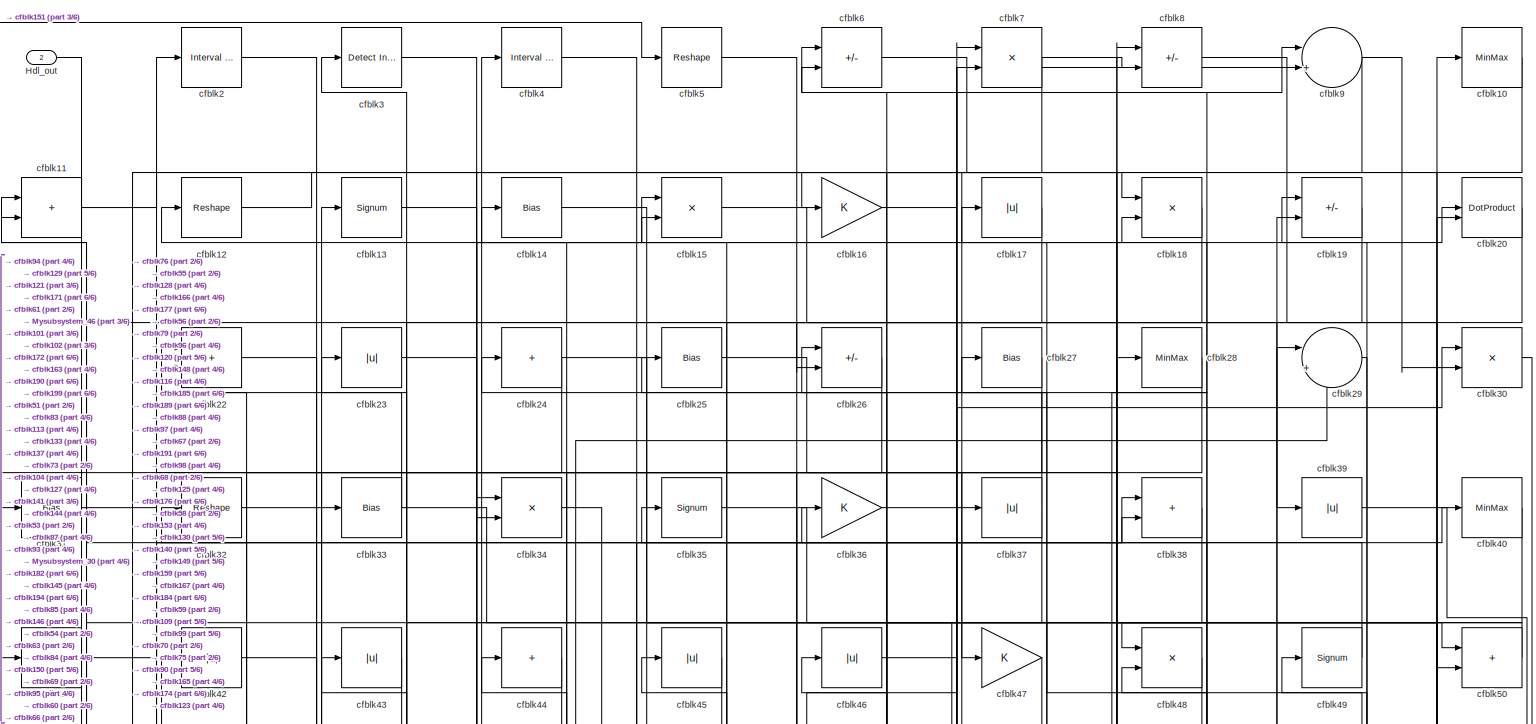
[diagram: root canvas - part 1/6, full width, top band]
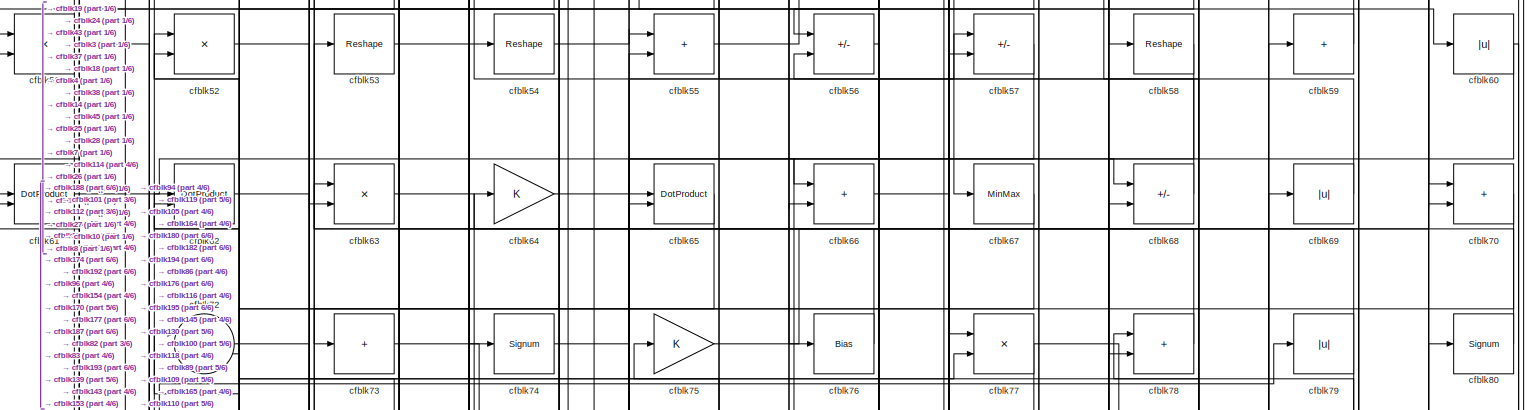
[diagram: root canvas - part 2/6, full width, top band]
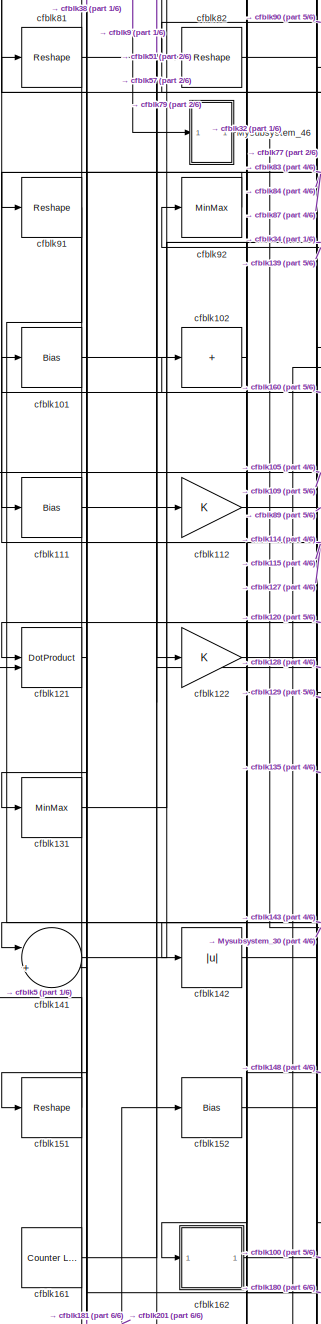
[diagram: root canvas - part 3/6, middle left region]
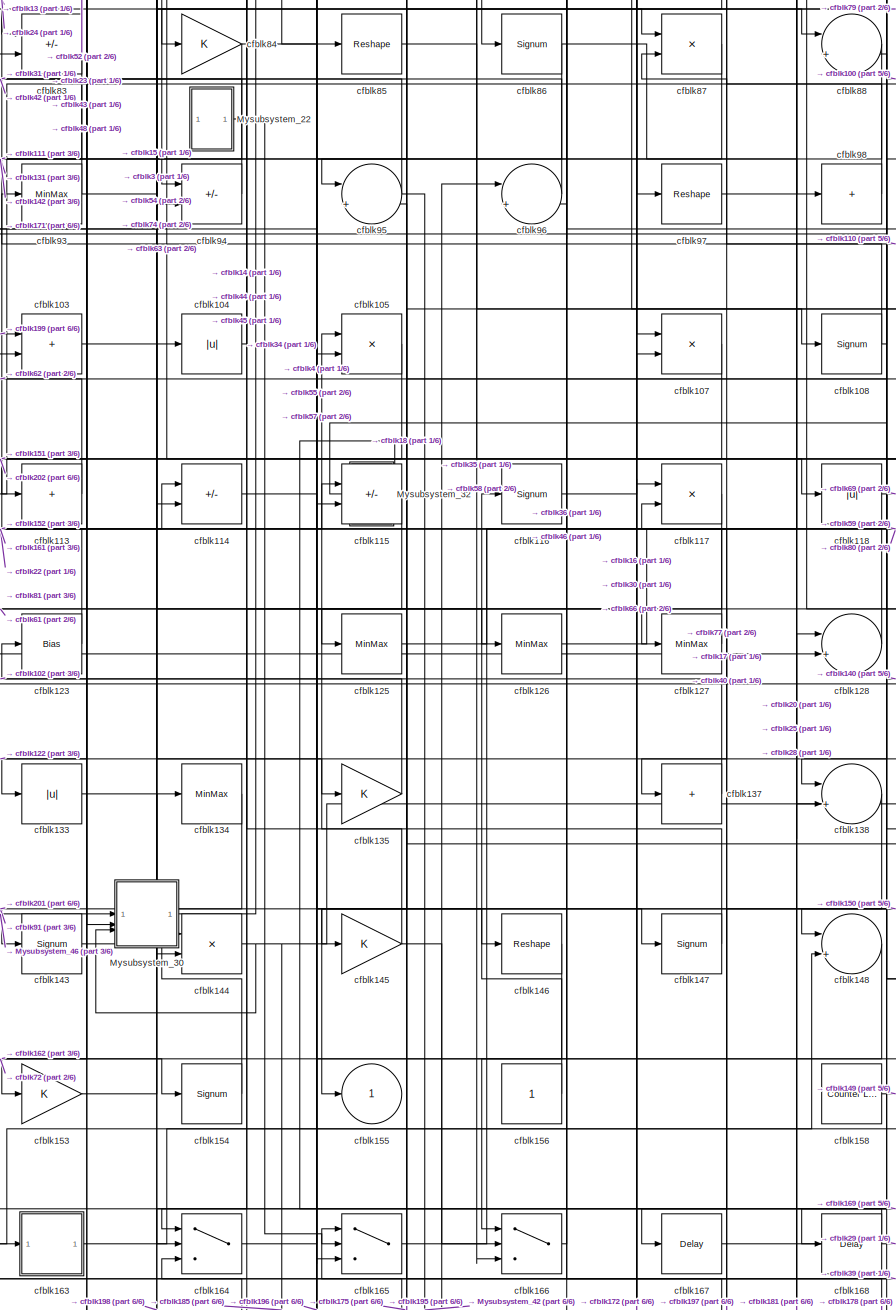
[diagram: root canvas - part 4/6, central region]
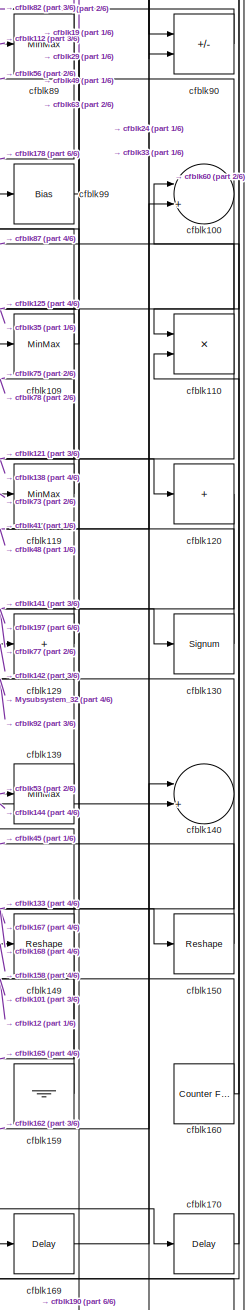
[diagram: root canvas - part 5/6, middle right region]
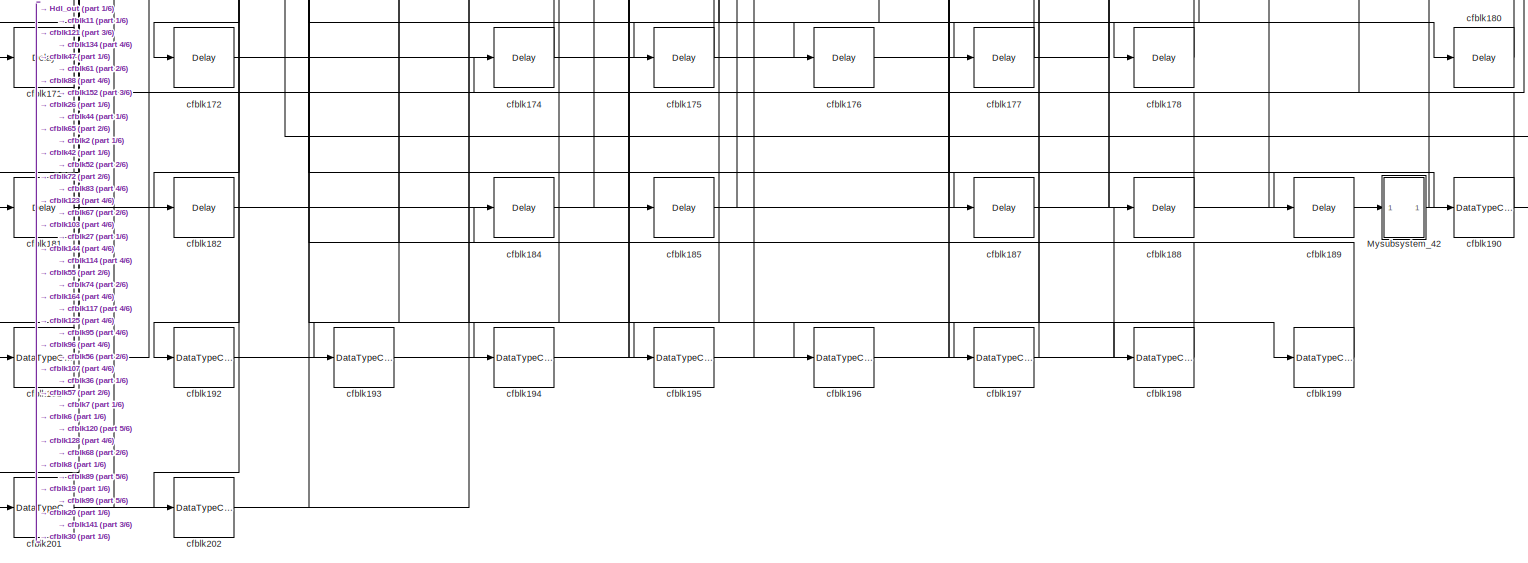
[diagram: root canvas - part 6/6, full width, bottom band]
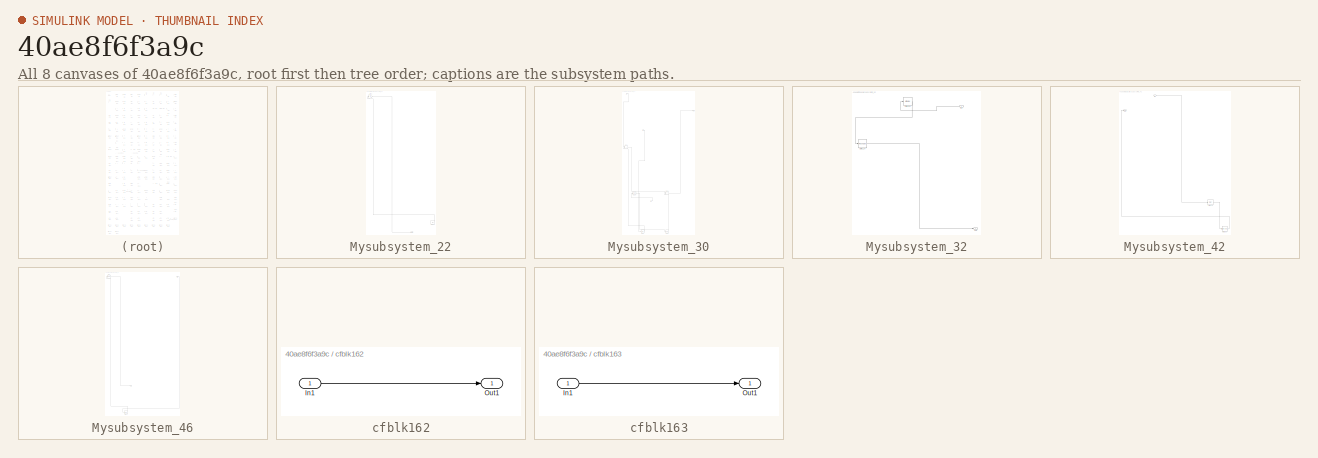
[diagram: thumbnail index - all 8 canvases of the model, root first then tree order]
MODEL slx_40ae8f6f3a9c
KIND model
CONFIG AbsTol = auto
CONFIG EnableMultiTasking = off
CONFIG FixedStep = auto
CONFIG MaxStep = auto
CONFIG MinStep = auto
CONFIG RelTol = 1e-3
CONFIG SampleTimeConstraint = Unconstrained
CONFIG SolverName = VariableStepAuto
CONFIG StartTime = 0.0
CONFIG StopTime = 10.0
BLOCK [Outport] Hdl_out
  OutDataTypeStr = uint8
  Port = 2
BLOCK [SubSystem] Mysubsystem_22
  RTWFcnName = Mysubsystem_22
  RTWFcnNameOpts = User specified
  RTWFileNameOpts = Use function name
  RTWSystemCode = Reusable function
  TreatAsAtomicUnit = on
BLOCK [Outport] Mysubsystem_22/Out1
BLOCK [Ground] Mysubsystem_22/cfblk157
BLOCK [Gain] Mysubsystem_22/cfblk21
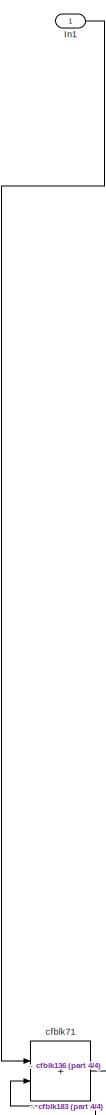
[diagram: Mysubsystem_30 - part 1/4, top left region]
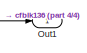
[diagram: Mysubsystem_30 - part 2/4, top right region]
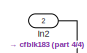
[diagram: Mysubsystem_30 - part 3/4, top left region]
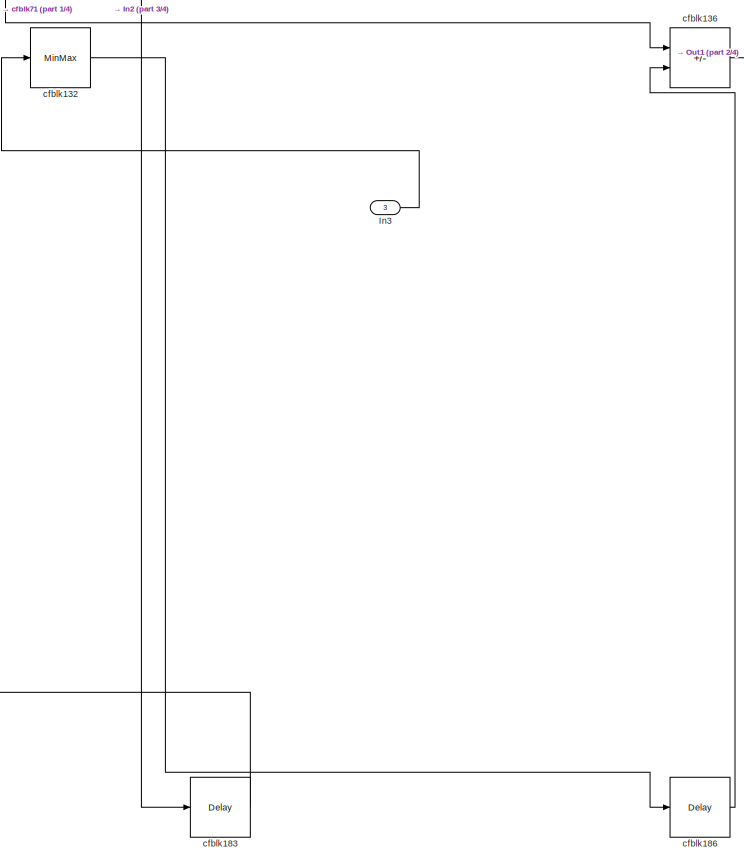
[diagram: Mysubsystem_30 - part 4/4, bottom center region]
BLOCK [SubSystem] Mysubsystem_30
  RTWFcnName = Mysubsystem_30
  RTWFcnNameOpts = User specified
  RTWFileNameOpts = Use function name
  RTWSystemCode = Reusable function
  TreatAsAtomicUnit = on
BLOCK [Inport] Mysubsystem_30/In1
BLOCK [Inport] Mysubsystem_30/In2
  Port = 2
BLOCK [Inport] Mysubsystem_30/In3
  Port = 3
BLOCK [Outport] Mysubsystem_30/Out1
BLOCK [MinMax] Mysubsystem_30/cfblk132
BLOCK [Sum] Mysubsystem_30/cfblk136
  IconShape = rectangular
  Inputs = +-
BLOCK [Delay] Mysubsystem_30/cfblk183
  InputPortMap = u0
  SampleTime = 1
BLOCK [Delay] Mysubsystem_30/cfblk186
  InputPortMap = u0
  SampleTime = 1
BLOCK [Sum] Mysubsystem_30/cfblk71
  IconShape = rectangular
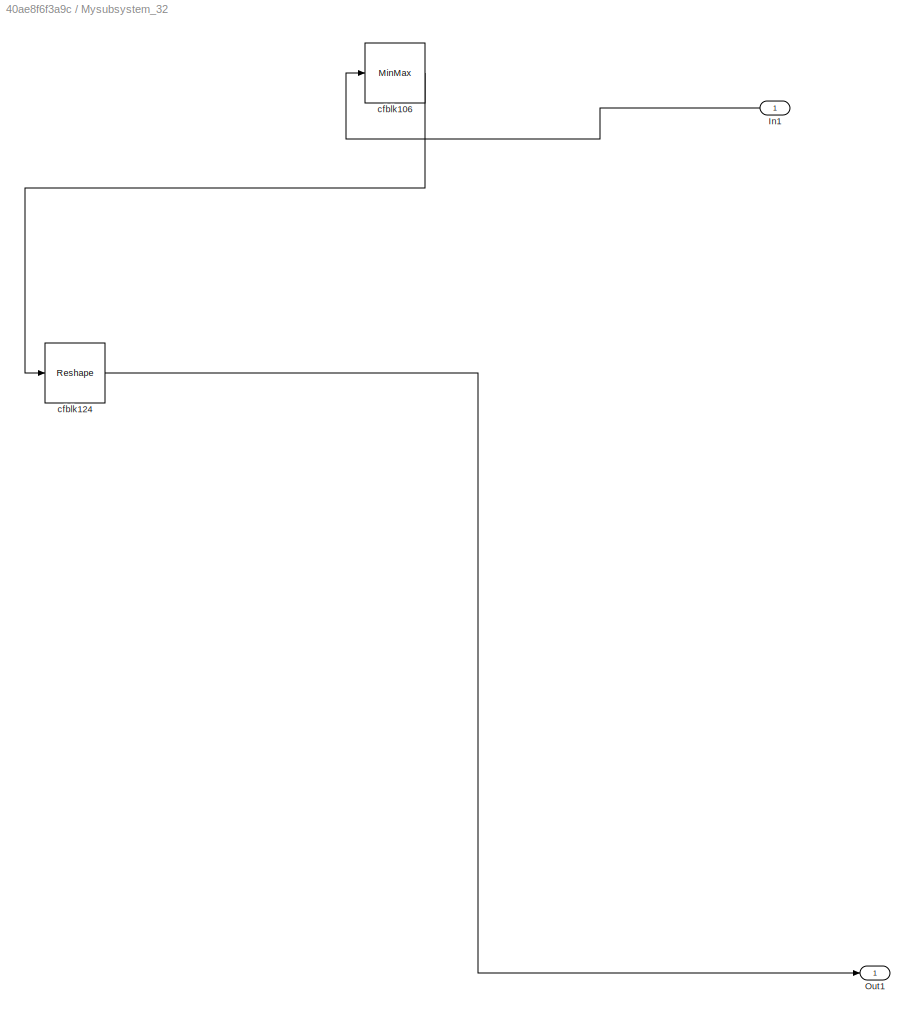
BLOCK [SubSystem] Mysubsystem_32
  RTWFcnName = Mysubsystem_32
  RTWFcnNameOpts = User specified
  RTWFileNameOpts = Use function name
  RTWSystemCode = Reusable function
  TreatAsAtomicUnit = on
BLOCK [Inport] Mysubsystem_32/In1
BLOCK [Outport] Mysubsystem_32/Out1
BLOCK [MinMax] Mysubsystem_32/cfblk106
BLOCK [Reshape] Mysubsystem_32/cfblk124
BLOCK [SubSystem] Mysubsystem_42
  RTWFcnName = Mysubsystem_42
  RTWFcnNameOpts = User specified
  RTWFileNameOpts = Use function name
  RTWSystemCode = Reusable function
  TreatAsAtomicUnit = on
BLOCK [Inport] Mysubsystem_42/In1
BLOCK [Outport] Mysubsystem_42/Out1
BLOCK [Delay] Mysubsystem_42/cfblk179
  InputPortMap = u0
  SampleTime = 1
BLOCK [DataTypeConversion] Mysubsystem_42/cfblk200
  OutDataTypeStr = uint8
  RndMeth = Floor
  SaturateOnIntegerOverflow = off
BLOCK [SubSystem] Mysubsystem_46
  RTWFcnName = Mysubsystem_46
  RTWFcnNameOpts = User specified
  RTWFileNameOpts = Use function name
  RTWSystemCode = Reusable function
  TreatAsAtomicUnit = on
BLOCK [Inport] Mysubsystem_46/In1
BLOCK [Outport] Mysubsystem_46/Y
BLOCK [Reference] Mysubsystem_46/cfblk1  REF=hdlsllib/Logic and Bit
Operations/Detect Fall
Nonpositive
  SourceBlock = hdlsllib/Logic and Bit\nOperations/Detect Fall\nNonpositive
  SourceType = Detect Fall Nonpositive
BLOCK [Delay] Mysubsystem_46/cfblk173
  InputPortMap = u0
  SampleTime = 1
BLOCK [MinMax] cfblk10
  OutDataTypeStr = uint8
BLOCK [Sum] cfblk100
  Inputs = |++
  OutDataTypeStr = uint8
BLOCK [Bias] cfblk101
  Bias = 0.0
  SaturateOnIntegerOverflow = off
BLOCK [Sum] cfblk102
  IconShape = rectangular
  Inputs = +
  OutDataTypeStr = uint8
BLOCK [Sum] cfblk103
  IconShape = rectangular
  OutDataTypeStr = uint8
BLOCK [Abs] cfblk104
  OutDataTypeStr = uint8
  SaturateOnIntegerOverflow = off
BLOCK [Product] cfblk105
  Inputs = */
  OutDataTypeStr = uint8
  RndMeth = Zero
  SaturateOnIntegerOverflow = on
BLOCK [Product] cfblk107
  Inputs = */
  OutDataTypeStr = uint8
  RndMeth = Zero
  SaturateOnIntegerOverflow = on
BLOCK [Signum] cfblk108
BLOCK [MinMax] cfblk109
  OutDataTypeStr = uint8
BLOCK [Sum] cfblk11
  IconShape = rectangular
  OutDataTypeStr = uint8
BLOCK [Product] cfblk110
  Inputs = */
  OutDataTypeStr = uint8
  RndMeth = Zero
  SaturateOnIntegerOverflow = on
BLOCK [Bias] cfblk111
  Bias = 0.0
  SaturateOnIntegerOverflow = off
BLOCK [Gain] cfblk112
  OutDataTypeStr = uint8
BLOCK [Sum] cfblk113
  IconShape = rectangular
  Inputs = +
  OutDataTypeStr = uint8
BLOCK [Sum] cfblk114
  IconShape = rectangular
  Inputs = +-
  OutDataTypeStr = uint8
BLOCK [Sum] cfblk115
  IconShape = rectangular
  Inputs = +-
  OutDataTypeStr = uint8
BLOCK [Signum] cfblk116
BLOCK [Product] cfblk117
  Inputs = */
  OutDataTypeStr = uint8
  RndMeth = Zero
  SaturateOnIntegerOverflow = on
BLOCK [Abs] cfblk118
  OutDataTypeStr = uint8
  SaturateOnIntegerOverflow = off
BLOCK [MinMax] cfblk119
  OutDataTypeStr = uint8
BLOCK [Reshape] cfblk12
BLOCK [Sum] cfblk120
  IconShape = rectangular
  Inputs = +
  OutDataTypeStr = uint8
BLOCK [DotProduct] cfblk121
  OutDataTypeStr = uint8
BLOCK [Gain] cfblk122
  OutDataTypeStr = uint8
BLOCK [Bias] cfblk123
  Bias = 0.0
  SaturateOnIntegerOverflow = off
BLOCK [MinMax] cfblk125
  OutDataTypeStr = uint8
BLOCK [MinMax] cfblk126
  OutDataTypeStr = uint8
BLOCK [MinMax] cfblk127
  OutDataTypeStr = uint8
BLOCK [Sum] cfblk128
  Inputs = |++
  OutDataTypeStr = uint8
BLOCK [Sum] cfblk129
  IconShape = rectangular
  Inputs = +
  OutDataTypeStr = uint8
BLOCK [Signum] cfblk13
BLOCK [Signum] cfblk130
BLOCK [MinMax] cfblk131
  OutDataTypeStr = uint8
BLOCK [Abs] cfblk133
  OutDataTypeStr = uint8
  SaturateOnIntegerOverflow = off
BLOCK [MinMax] cfblk134
  OutDataTypeStr = uint8
BLOCK [Gain] cfblk135
  OutDataTypeStr = uint8
BLOCK [Sum] cfblk137
  IconShape = rectangular
  Inputs = +
  OutDataTypeStr = uint8
BLOCK [Sum] cfblk138
  Inputs = |++
  OutDataTypeStr = uint8
BLOCK [MinMax] cfblk139
  OutDataTypeStr = uint8
BLOCK [Bias] cfblk14
  Bias = 0.0
  SaturateOnIntegerOverflow = off
BLOCK [Sum] cfblk140
  Inputs = |++
  OutDataTypeStr = uint8
BLOCK [Sum] cfblk141
  Inputs = |++
  OutDataTypeStr = uint8
BLOCK [Abs] cfblk142
  OutDataTypeStr = uint8
  SaturateOnIntegerOverflow = off
BLOCK [Signum] cfblk143
BLOCK [Product] cfblk144
  Inputs = */
  OutDataTypeStr = uint8
  RndMeth = Zero
  SaturateOnIntegerOverflow = on
BLOCK [Gain] cfblk145
  OutDataTypeStr = uint8
BLOCK [Reshape] cfblk146
BLOCK [Signum] cfblk147
BLOCK [Sum] cfblk148
  Inputs = |++
  OutDataTypeStr = uint8
BLOCK [Reshape] cfblk149
BLOCK [Product] cfblk15
  Inputs = */
  OutDataTypeStr = uint8
  RndMeth = Zero
  SaturateOnIntegerOverflow = on
BLOCK [Reshape] cfblk150
BLOCK [Reshape] cfblk151
BLOCK [Bias] cfblk152
  Bias = 0.0
  SaturateOnIntegerOverflow = off
BLOCK [Gain] cfblk153
  OutDataTypeStr = uint8
BLOCK [Signum] cfblk154
BLOCK [Outport] cfblk155
  OutDataTypeStr = uint8
  VectorParamsAs1DForOutWhenUnconnected = off
BLOCK [Constant] cfblk156
  OutDataTypeStr = uint8
  SampleTime = -1
BLOCK [Reference] cfblk158  REF=hdlsllib/Sources/Counter
Limited
  SourceBlock = hdlsllib/Sources/Counter\nLimited
  SourceType = Counter Limited
BLOCK [Ground] cfblk159
BLOCK [Gain] cfblk16
  OutDataTypeStr = uint8
BLOCK [Reference] cfblk160  REF=hdlsllib/Sources/Counter
Free-Running
  SourceBlock = hdlsllib/Sources/Counter\nFree-Running
  SourceType = Counter Free-Running
BLOCK [Reference] cfblk161  REF=hdlsllib/Sources/Counter
Limited
  SourceBlock = hdlsllib/Sources/Counter\nLimited
  SourceType = Counter Limited
BLOCK [SubSystem] cfblk162
  LibrarySourceBlock = hdlsllib/Ports &\nSubsystems/Subsystem
BLOCK [Inport] cfblk162/In1
BLOCK [Outport] cfblk162/Out1
BLOCK [SubSystem] cfblk163
  LibrarySourceBlock = hdlsllib/Ports &\nSubsystems/Subsystem
BLOCK [Inport] cfblk163/In1
BLOCK [Outport] cfblk163/Out1
BLOCK [Switch] cfblk164
  InputSameDT = off
  OutDataTypeStr = uint8
  SaturateOnIntegerOverflow = off
BLOCK [Switch] cfblk165
  InputSameDT = off
  OutDataTypeStr = uint8
  SaturateOnIntegerOverflow = off
BLOCK [Switch] cfblk166
  InputSameDT = off
  OutDataTypeStr = uint8
  SaturateOnIntegerOverflow = off
BLOCK [Delay] cfblk167
  InputPortMap = u0
  SampleTime = 1
BLOCK [Delay] cfblk168
  InputPortMap = u0
  SampleTime = 1
BLOCK [Delay] cfblk169
  InputPortMap = u0
  SampleTime = 1
BLOCK [Abs] cfblk17
  OutDataTypeStr = uint8
  SaturateOnIntegerOverflow = off
BLOCK [Delay] cfblk170
  InputPortMap = u0
  SampleTime = 1
BLOCK [Delay] cfblk171
  InputPortMap = u0
  SampleTime = 1
BLOCK [Delay] cfblk172
  InputPortMap = u0
  SampleTime = 1
BLOCK [Delay] cfblk174
  InputPortMap = u0
  SampleTime = 1
BLOCK [Delay] cfblk175
  InputPortMap = u0
  SampleTime = 1
BLOCK [Delay] cfblk176
  InputPortMap = u0
  SampleTime = 1
BLOCK [Delay] cfblk177
  InputPortMap = u0
  SampleTime = 1
BLOCK [Delay] cfblk178
  InputPortMap = u0
  SampleTime = 1
BLOCK [Product] cfblk18
  Inputs = */
  OutDataTypeStr = uint8
  RndMeth = Zero
  SaturateOnIntegerOverflow = on
BLOCK [Delay] cfblk180
  InputPortMap = u0
  SampleTime = 1
BLOCK [Delay] cfblk181
  InputPortMap = u0
  SampleTime = 1
BLOCK [Delay] cfblk182
  InputPortMap = u0
  SampleTime = 1
BLOCK [Delay] cfblk184
  InputPortMap = u0
  SampleTime = 1
BLOCK [Delay] cfblk185
  InputPortMap = u0
  SampleTime = 1
BLOCK [Delay] cfblk187
  InputPortMap = u0
  SampleTime = 1
BLOCK [Delay] cfblk188
  InputPortMap = u0
  SampleTime = 1
BLOCK [Delay] cfblk189
  InputPortMap = u0
  SampleTime = 1
BLOCK [Sum] cfblk19
  IconShape = rectangular
  Inputs = +-
  OutDataTypeStr = uint8
BLOCK [DataTypeConversion] cfblk190
  OutDataTypeStr = uint8
  RndMeth = Floor
  SaturateOnIntegerOverflow = off
BLOCK [DataTypeConversion] cfblk191
  OutDataTypeStr = uint8
  RndMeth = Floor
  SaturateOnIntegerOverflow = off
BLOCK [DataTypeConversion] cfblk192
  OutDataTypeStr = uint8
  RndMeth = Floor
  SaturateOnIntegerOverflow = off
BLOCK [DataTypeConversion] cfblk193
  OutDataTypeStr = uint8
  RndMeth = Floor
  SaturateOnIntegerOverflow = off
BLOCK [DataTypeConversion] cfblk194
  OutDataTypeStr = uint8
  RndMeth = Floor
  SaturateOnIntegerOverflow = off
BLOCK [DataTypeConversion] cfblk195
  OutDataTypeStr = uint8
  RndMeth = Floor
  SaturateOnIntegerOverflow = off
BLOCK [DataTypeConversion] cfblk196
  OutDataTypeStr = uint8
  RndMeth = Floor
  SaturateOnIntegerOverflow = off
BLOCK [DataTypeConversion] cfblk197
  OutDataTypeStr = uint8
  RndMeth = Floor
  SaturateOnIntegerOverflow = off
BLOCK [DataTypeConversion] cfblk198
  OutDataTypeStr = uint8
  RndMeth = Floor
  SaturateOnIntegerOverflow = off
BLOCK [DataTypeConversion] cfblk199
  OutDataTypeStr = uint8
  RndMeth = Floor
  SaturateOnIntegerOverflow = off
BLOCK [Reference] cfblk2  REF=hdlsllib/Logic and Bit
Operations/Interval Test
  SourceBlock = hdlsllib/Logic and Bit\nOperations/Interval Test
  SourceType = Interval Test
BLOCK [DotProduct] cfblk20
  OutDataTypeStr = uint8
BLOCK [DataTypeConversion] cfblk201
  OutDataTypeStr = uint8
  RndMeth = Floor
  SaturateOnIntegerOverflow = off
BLOCK [DataTypeConversion] cfblk202
  OutDataTypeStr = uint8
  RndMeth = Floor
  SaturateOnIntegerOverflow = off
BLOCK [Sum] cfblk22
  IconShape = rectangular
  OutDataTypeStr = uint8
BLOCK [Abs] cfblk23
  OutDataTypeStr = uint8
  SaturateOnIntegerOverflow = off
BLOCK [Sum] cfblk24
  IconShape = rectangular
  Inputs = +
  OutDataTypeStr = uint8
BLOCK [Bias] cfblk25
  Bias = 0.0
  SaturateOnIntegerOverflow = off
BLOCK [Sum] cfblk26
  IconShape = rectangular
  Inputs = +-
  OutDataTypeStr = uint8
BLOCK [Bias] cfblk27
  Bias = 0.0
  SaturateOnIntegerOverflow = off
BLOCK [MinMax] cfblk28
  OutDataTypeStr = uint8
BLOCK [Sum] cfblk29
  Inputs = |++
  OutDataTypeStr = uint8
BLOCK [Reference] cfblk3  REF=simulink/Logic and Bit
Operations/Detect
Increase
  LibrarySourceBlock = hdlsllib/Logic and Bit\nOperations/Detect\nIncrease
  SourceBlock = simulink/Logic and Bit\nOperations/Detect\nIncrease
  SourceType = Detect Increase
BLOCK [Product] cfblk30
  Inputs = */
  OutDataTypeStr = uint8
  RndMeth = Zero
  SaturateOnIntegerOverflow = on
BLOCK [Bias] cfblk31
  Bias = 0.0
  SaturateOnIntegerOverflow = off
BLOCK [Reshape] cfblk32
BLOCK [Bias] cfblk33
  Bias = 0.0
  SaturateOnIntegerOverflow = off
BLOCK [Product] cfblk34
  Inputs = */
  OutDataTypeStr = uint8
  RndMeth = Zero
  SaturateOnIntegerOverflow = on
BLOCK [Signum] cfblk35
BLOCK [Gain] cfblk36
  OutDataTypeStr = uint8
BLOCK [Abs] cfblk37
  OutDataTypeStr = uint8
  SaturateOnIntegerOverflow = off
BLOCK [Sum] cfblk38
  IconShape = rectangular
  OutDataTypeStr = uint8
BLOCK [Abs] cfblk39
  OutDataTypeStr = uint8
  SaturateOnIntegerOverflow = off
BLOCK [Reference] cfblk4  REF=hdlsllib/Logic and Bit
Operations/Interval Test
  SourceBlock = hdlsllib/Logic and Bit\nOperations/Interval Test
  SourceType = Interval Test
BLOCK [MinMax] cfblk40
  OutDataTypeStr = uint8
BLOCK [Bias] cfblk41
  Bias = 0.0
  SaturateOnIntegerOverflow = off
BLOCK [Abs] cfblk42
  OutDataTypeStr = uint8
  SaturateOnIntegerOverflow = off
BLOCK [Abs] cfblk43
  OutDataTypeStr = uint8
  SaturateOnIntegerOverflow = off
BLOCK [Sum] cfblk44
  IconShape = rectangular
  Inputs = +
  OutDataTypeStr = uint8
BLOCK [Abs] cfblk45
  OutDataTypeStr = uint8
  SaturateOnIntegerOverflow = off
BLOCK [Abs] cfblk46
  OutDataTypeStr = uint8
  SaturateOnIntegerOverflow = off
BLOCK [Gain] cfblk47
  OutDataTypeStr = uint8
BLOCK [Product] cfblk48
  Inputs = */
  OutDataTypeStr = uint8
  RndMeth = Zero
  SaturateOnIntegerOverflow = on
BLOCK [Signum] cfblk49
BLOCK [Reshape] cfblk5
BLOCK [Sum] cfblk50
  IconShape = rectangular
  OutDataTypeStr = uint8
BLOCK [Product] cfblk51
  Inputs = */
  OutDataTypeStr = uint8
  RndMeth = Zero
  SaturateOnIntegerOverflow = on
BLOCK [Product] cfblk52
  Inputs = */
  OutDataTypeStr = uint8
  RndMeth = Zero
  SaturateOnIntegerOverflow = on
BLOCK [Reshape] cfblk53
BLOCK [Reshape] cfblk54
BLOCK [Sum] cfblk55
  IconShape = rectangular
  OutDataTypeStr = uint8
BLOCK [Sum] cfblk56
  IconShape = rectangular
  Inputs = +-
  OutDataTypeStr = uint8
BLOCK [Sum] cfblk57
  IconShape = rectangular
  Inputs = +-
  OutDataTypeStr = uint8
BLOCK [Reshape] cfblk58
BLOCK [Sum] cfblk59
  IconShape = rectangular
  Inputs = +
  OutDataTypeStr = uint8
BLOCK [Sum] cfblk6
  IconShape = rectangular
  Inputs = +-
  OutDataTypeStr = uint8
BLOCK [Abs] cfblk60
  OutDataTypeStr = uint8
  SaturateOnIntegerOverflow = off
BLOCK [DotProduct] cfblk61
  OutDataTypeStr = uint8
BLOCK [DotProduct] cfblk62
  OutDataTypeStr = uint8
BLOCK [Product] cfblk63
  Inputs = */
  OutDataTypeStr = uint8
  RndMeth = Zero
  SaturateOnIntegerOverflow = on
BLOCK [Gain] cfblk64
  OutDataTypeStr = uint8
BLOCK [DotProduct] cfblk65
  OutDataTypeStr = uint8
BLOCK [Sum] cfblk66
  IconShape = rectangular
  OutDataTypeStr = uint8
BLOCK [MinMax] cfblk67
  OutDataTypeStr = uint8
BLOCK [Sum] cfblk68
  IconShape = rectangular
  Inputs = +-
  OutDataTypeStr = uint8
BLOCK [Abs] cfblk69
  OutDataTypeStr = uint8
  SaturateOnIntegerOverflow = off
BLOCK [Product] cfblk7
  Inputs = */
  OutDataTypeStr = uint8
  RndMeth = Zero
  SaturateOnIntegerOverflow = on
BLOCK [Sum] cfblk70
  IconShape = rectangular
  OutDataTypeStr = uint8
BLOCK [Sum] cfblk72
  Inputs = |++
  OutDataTypeStr = uint8
BLOCK [Sum] cfblk73
  IconShape = rectangular
  Inputs = +
  OutDataTypeStr = uint8
BLOCK [Signum] cfblk74
BLOCK [Gain] cfblk75
  OutDataTypeStr = uint8
BLOCK [Bias] cfblk76
  Bias = 0.0
  SaturateOnIntegerOverflow = off
BLOCK [Product] cfblk77
  Inputs = */
  OutDataTypeStr = uint8
  RndMeth = Zero
  SaturateOnIntegerOverflow = on
BLOCK [Sum] cfblk78
  IconShape = rectangular
  OutDataTypeStr = uint8
BLOCK [Abs] cfblk79
  OutDataTypeStr = uint8
  SaturateOnIntegerOverflow = off
BLOCK [Sum] cfblk8
  IconShape = rectangular
  Inputs = +-
  OutDataTypeStr = uint8
BLOCK [Signum] cfblk80
BLOCK [Reshape] cfblk81
BLOCK [Reshape] cfblk82
BLOCK [Sum] cfblk83
  IconShape = rectangular
  Inputs = +-
  OutDataTypeStr = uint8
BLOCK [Gain] cfblk84
  OutDataTypeStr = uint8
BLOCK [Reshape] cfblk85
BLOCK [Signum] cfblk86
BLOCK [Product] cfblk87
  Inputs = */
  OutDataTypeStr = uint8
  RndMeth = Zero
  SaturateOnIntegerOverflow = on
BLOCK [Sum] cfblk88
  Inputs = |++
  OutDataTypeStr = uint8
BLOCK [MinMax] cfblk89
  OutDataTypeStr = uint8
BLOCK [Sum] cfblk9
  Inputs = |++
  OutDataTypeStr = uint8
BLOCK [Sum] cfblk90
  IconShape = rectangular
  Inputs = +-
  OutDataTypeStr = uint8
BLOCK [Reshape] cfblk91
BLOCK [MinMax] cfblk92
  OutDataTypeStr = uint8
BLOCK [MinMax] cfblk93
  OutDataTypeStr = uint8
BLOCK [Sum] cfblk94
  IconShape = rectangular
  Inputs = +-
  OutDataTypeStr = uint8
BLOCK [Sum] cfblk95
  Inputs = |++
  OutDataTypeStr = uint8
BLOCK [Sum] cfblk96
  Inputs = |++
  OutDataTypeStr = uint8
BLOCK [Reshape] cfblk97
BLOCK [Sum] cfblk98
  IconShape = rectangular
  Inputs = +
  OutDataTypeStr = uint8
BLOCK [Bias] cfblk99
  Bias = 0.0
  SaturateOnIntegerOverflow = off
LINE Mysubsystem_22/cfblk157:1 -> Mysubsystem_22/cfblk21:1
LINE Mysubsystem_22/cfblk21:1 -> Mysubsystem_22/Out1:1
LINE Mysubsystem_22:1 -> cfblk165:2
LINE Mysubsystem_30/In1:1 -> Mysubsystem_30/cfblk71:1
LINE Mysubsystem_30/In2:1 -> Mysubsystem_30/cfblk183:1
LINE Mysubsystem_30/In3:1 -> Mysubsystem_30/cfblk132:1
LINE Mysubsystem_30/cfblk132:1 -> Mysubsystem_30/cfblk186:1
LINE Mysubsystem_30/cfblk136:1 -> Mysubsystem_30/Out1:1
LINE Mysubsystem_30/cfblk183:1 -> Mysubsystem_30/cfblk71:2
LINE Mysubsystem_30/cfblk186:1 -> Mysubsystem_30/cfblk136:2
LINE Mysubsystem_30/cfblk71:1 -> Mysubsystem_30/cfblk136:1
LINE Mysubsystem_30:1 -> cfblk29:2
LINE Mysubsystem_32/In1:1 -> Mysubsystem_32/cfblk106:1
LINE Mysubsystem_32/cfblk106:1 -> Mysubsystem_32/cfblk124:1
LINE Mysubsystem_32/cfblk124:1 -> Mysubsystem_32/Out1:1
LINE Mysubsystem_32:1 -> cfblk169:1
LINE Mysubsystem_42/In1:1 -> Mysubsystem_42/cfblk179:1
LINE Mysubsystem_42/cfblk179:1 -> Mysubsystem_42/cfblk200:1
LINE Mysubsystem_42/cfblk200:1 -> Mysubsystem_42/Out1:1
LINE Mysubsystem_42:1 -> cfblk103:2
LINE Mysubsystem_46/In1:1 -> Mysubsystem_46/cfblk173:1
LINE Mysubsystem_46/cfblk173:1 -> Mysubsystem_46/cfblk1:1
LINE Mysubsystem_46/cfblk1:1 -> Mysubsystem_46/Y:1
LINE Mysubsystem_46:1 -> Mysubsystem_30:1
NET cfblk100:1 -> cfblk125:1, cfblk56:2
NET cfblk101:1 -> cfblk38:2, cfblk57:1
LINE cfblk102:1 -> cfblk32:1
LINE cfblk103:1 -> cfblk198:1
LINE cfblk104:1 -> cfblk14:1
LINE cfblk105:1 -> cfblk151:1
LINE cfblk107:1 -> cfblk202:1
NET cfblk108:1 -> cfblk88:2, cfblk93:1
NET cfblk109:1 -> cfblk121:2, cfblk49:1, cfblk63:1
LINE cfblk10:1 -> cfblk56:1
NET cfblk110:1 -> cfblk138:1, cfblk87:2
LINE cfblk111:1 -> cfblk128:2
LINE cfblk112:1 -> cfblk89:1
LINE cfblk113:1 -> cfblk62:1
LINE cfblk114:1 -> cfblk196:1
LINE cfblk115:1 -> cfblk164:1
NET cfblk116:1 -> cfblk30:1, cfblk77:1
LINE cfblk117:1 -> cfblk195:1
LINE cfblk118:1 -> cfblk69:1
NET cfblk119:1 -> cfblk75:1, cfblk78:1
LINE cfblk11:1 -> cfblk16:1
NET cfblk120:1 -> cfblk141:1, cfblk197:1
LINE cfblk121:1 -> cfblk181:1
LINE cfblk122:1 -> cfblk135:1
LINE cfblk123:1 -> cfblk13:1
NET cfblk125:1 -> cfblk175:1, cfblk28:1
LINE cfblk126:1 -> cfblk59:1
LINE cfblk127:1 -> cfblk81:1
NET cfblk128:1 -> cfblk22:1, cfblk36:1
LINE cfblk129:1 -> cfblk41:1
LINE cfblk12:1 -> cfblk67:1
LINE cfblk130:1 -> cfblk48:2
LINE cfblk131:1 -> cfblk79:1
LINE cfblk133:1 -> cfblk150:1
LINE cfblk134:1 -> cfblk201:1
LINE cfblk135:1 -> cfblk102:1
LINE cfblk137:1 -> cfblk23:1
LINE cfblk138:1 -> cfblk155:1
LINE cfblk139:1 -> cfblk92:1
NET cfblk13:1 -> cfblk104:1, cfblk127:1
NET cfblk140:1 -> Mysubsystem_32:1, cfblk167:1, cfblk168:1, cfblk35:1
LINE cfblk141:1 -> cfblk34:1
LINE cfblk142:1 -> cfblk129:1
LINE cfblk143:1 -> cfblk54:1
NET cfblk144:1 -> Mysubsystem_30:3, cfblk140:2, cfblk185:1
NET cfblk145:1 -> cfblk166:2, cfblk44:1
LINE cfblk146:1 -> cfblk166:1
LINE cfblk147:1 -> cfblk105:1
LINE cfblk148:1 -> cfblk162:1
NET cfblk149:1 -> cfblk165:3, cfblk24:1
NET cfblk14:1 -> cfblk60:1, cfblk76:1
LINE cfblk150:1 -> cfblk45:1
LINE cfblk151:1 -> cfblk5:1
LINE cfblk152:1 -> cfblk115:1
LINE cfblk153:1 -> cfblk74:1
LINE cfblk154:1 -> cfblk144:1
LINE cfblk156:1 -> cfblk116:1
LINE cfblk158:1 -> cfblk149:1
LINE cfblk159:1 -> cfblk12:1
LINE cfblk15:1 -> cfblk39:1
NET cfblk160:1 -> cfblk101:1, cfblk110:2
LINE cfblk161:1 -> cfblk114:1
LINE cfblk162/In1:1 -> cfblk162/Out1:1
LINE cfblk162:1 -> cfblk100:2
LINE cfblk163/In1:1 -> cfblk163/Out1:1
LINE cfblk163:1 -> cfblk148:2
LINE cfblk164:1 -> cfblk55:1
LINE cfblk165:1 -> cfblk80:1
LINE cfblk166:1 -> cfblk46:1
LINE cfblk167:1 -> cfblk29:1
LINE cfblk168:1 -> cfblk164:2
LINE cfblk169:1 -> cfblk140:1
NET cfblk16:1 -> cfblk97:1, cfblk9:1
LINE cfblk170:1 -> cfblk100:1
LINE cfblk171:1 -> cfblk11:2
LINE cfblk172:1 -> cfblk107:2
LINE cfblk174:1 -> cfblk72:1
LINE cfblk175:1 -> cfblk164:3
LINE cfblk176:1 -> cfblk8:1
LINE cfblk177:1 -> cfblk6:2
LINE cfblk178:1 -> cfblk95:2
LINE cfblk17:1 -> cfblk26:2
LINE cfblk180:1 -> cfblk141:2
LINE cfblk181:1 -> cfblk128:1
LINE cfblk182:1 -> cfblk55:2
LINE cfblk184:1 -> cfblk19:2
LINE cfblk185:1 -> cfblk7:2
LINE cfblk187:1 -> cfblk68:2
LINE cfblk188:1 -> cfblk61:2
LINE cfblk189:1 -> cfblk20:2
LINE cfblk18:1 -> cfblk95:1
LINE cfblk190:1 -> cfblk99:1
NET cfblk191:1 -> Hdl_out:1, cfblk2:1
LINE cfblk192:1 -> cfblk188:1
LINE cfblk193:1 -> cfblk65:1
LINE cfblk194:1 -> cfblk65:2
NET cfblk195:1 -> cfblk57:2, cfblk96:1
LINE cfblk196:1 -> cfblk117:1
LINE cfblk197:1 -> cfblk117:2
NET cfblk198:1 -> cfblk123:1, cfblk184:1
LINE cfblk199:1 -> cfblk103:1
LINE cfblk19:1 -> cfblk61:1
NET cfblk201:1 -> cfblk152:1, cfblk83:2
LINE cfblk202:1 -> cfblk134:1
LINE cfblk20:1 -> cfblk133:1
LINE cfblk22:1 -> cfblk163:1
LINE cfblk23:1 -> cfblk144:2
NET cfblk24:1 -> cfblk51:2, cfblk83:1, cfblk90:2
LINE cfblk25:1 -> cfblk98:1
LINE cfblk26:1 -> cfblk172:1
LINE cfblk27:1 -> cfblk194:1
NET cfblk28:1 -> cfblk113:1, cfblk166:3, cfblk66:2
LINE cfblk29:1 -> cfblk109:1
LINE cfblk2:1 -> cfblk190:1
LINE cfblk30:1 -> cfblk174:1
LINE cfblk31:1 -> cfblk37:1
LINE cfblk32:1 -> cfblk33:1
NET cfblk33:1 -> cfblk22:2, cfblk90:1
LINE cfblk34:1 -> cfblk85:1
NET cfblk35:1 -> cfblk120:1, cfblk148:1
NET cfblk36:1 -> cfblk189:1, cfblk47:1
NET cfblk37:1 -> cfblk15:2, cfblk73:1
LINE cfblk38:1 -> cfblk121:1
LINE cfblk39:1 -> cfblk165:1
NET cfblk3:1 -> cfblk87:1, cfblk94:2
NET cfblk40:1 -> cfblk137:1, cfblk96:2
LINE cfblk41:1 -> cfblk40:1
LINE cfblk42:1 -> cfblk199:1
LINE cfblk43:1 -> cfblk51:1
NET cfblk44:1 -> Mysubsystem_30:2, cfblk182:1
NET cfblk45:1 -> cfblk63:2, cfblk84:1
LINE cfblk46:1 -> cfblk88:1
LINE cfblk47:1 -> cfblk191:1
LINE cfblk48:1 -> cfblk153:1
LINE cfblk49:1 -> cfblk11:1
LINE cfblk4:1 -> cfblk146:1
LINE cfblk50:1 -> cfblk48:1
LINE cfblk51:1 -> cfblk112:1
LINE cfblk52:1 -> cfblk177:1
NET cfblk53:1 -> cfblk139:1, cfblk18:2
LINE cfblk54:1 -> cfblk38:1
LINE cfblk55:1 -> cfblk7:1
LINE cfblk56:1 -> cfblk176:1
LINE cfblk57:1 -> cfblk105:2
LINE cfblk58:1 -> cfblk86:1
LINE cfblk59:1 -> cfblk27:1
NET cfblk5:1 -> cfblk18:1, cfblk50:2
NET cfblk60:1 -> cfblk110:1, cfblk78:2
NET cfblk61:1 -> cfblk126:1, cfblk68:1
LINE cfblk62:1 -> cfblk170:1
LINE cfblk63:1 -> cfblk94:1
LINE cfblk64:1 -> cfblk66:1
LINE cfblk65:1 -> cfblk192:1
NET cfblk66:1 -> cfblk118:1, cfblk9:2
LINE cfblk67:1 -> cfblk193:1
LINE cfblk68:1 -> cfblk6:1
NET cfblk69:1 -> cfblk25:1, cfblk4:1
LINE cfblk6:1 -> cfblk58:1
LINE cfblk70:1 -> cfblk72:2
NET cfblk72:1 -> cfblk154:1, cfblk187:1
LINE cfblk73:1 -> cfblk119:1
LINE cfblk74:1 -> cfblk180:1
LINE cfblk75:1 -> cfblk10:1
LINE cfblk76:1 -> cfblk3:1
NET cfblk77:1 -> cfblk130:1, cfblk145:1
LINE cfblk78:1 -> cfblk64:1
NET cfblk79:1 -> cfblk114:2, cfblk26:1
NET cfblk7:1 -> cfblk34:2, cfblk50:1, cfblk8:2
LINE cfblk80:1 -> cfblk53:1
LINE cfblk81:1 -> cfblk122:1
LINE cfblk82:1 -> cfblk77:2
NET cfblk83:1 -> cfblk142:1, cfblk52:2
NET cfblk84:1 -> cfblk111:1, cfblk147:1
LINE cfblk85:1 -> cfblk108:1
NET cfblk86:1 -> cfblk107:1, cfblk115:2, cfblk138:2
LINE cfblk87:1 -> cfblk131:1
LINE cfblk88:1 -> cfblk171:1
NET cfblk89:1 -> cfblk178:1, cfblk62:2
NET cfblk8:1 -> cfblk70:1, cfblk70:2
LINE cfblk90:1 -> cfblk82:1
LINE cfblk91:1 -> cfblk143:1
LINE cfblk92:1 -> cfblk91:1
NET cfblk93:1 -> cfblk15:1, cfblk42:1
LINE cfblk94:1 -> cfblk31:1
NET cfblk95:1 -> Mysubsystem_42:1, cfblk43:1
LINE cfblk96:1 -> cfblk52:1
LINE cfblk97:1 -> cfblk20:1
LINE cfblk98:1 -> cfblk17:1
LINE cfblk99:1 -> cfblk19:1
NET cfblk9:1 -> Mysubsystem_46:1, cfblk30:2
note: NET lines group one-source signal fan-out (src -> all destinations, sorted); 1:1 wires keep LINE
